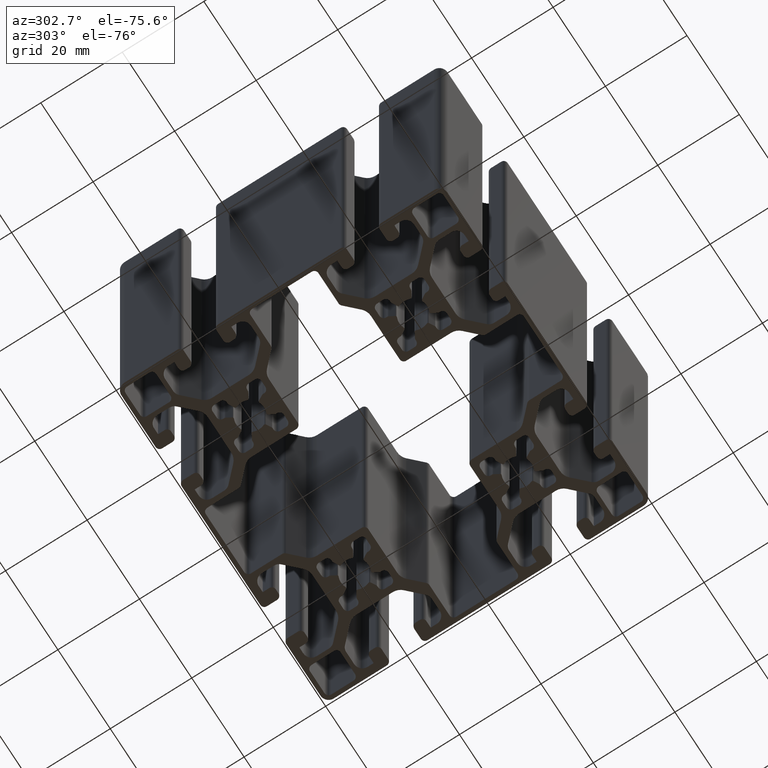
[diagram: clean part render]
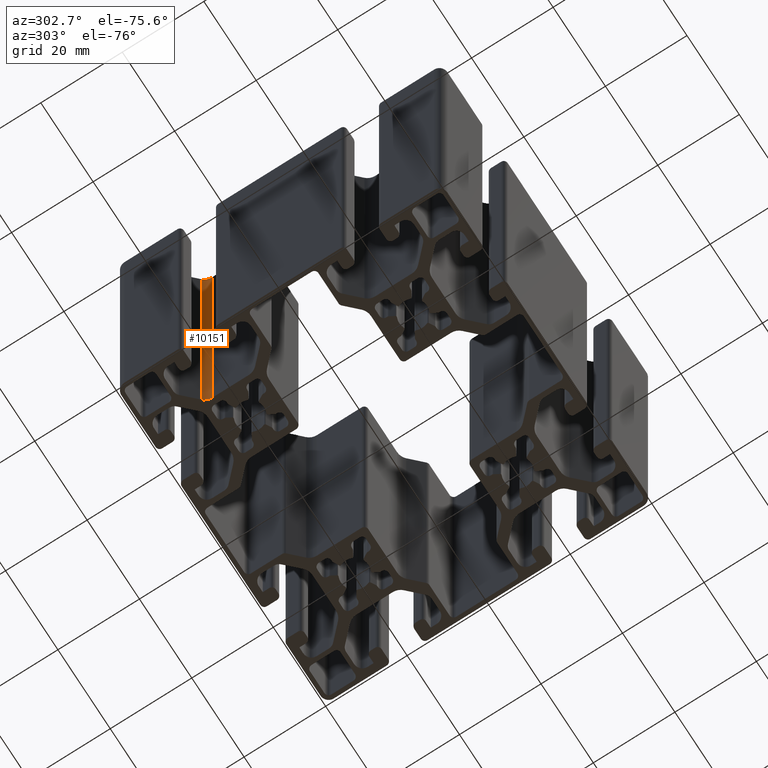
[diagram: same view with one face highlighted and labeled with its STEP entity id]
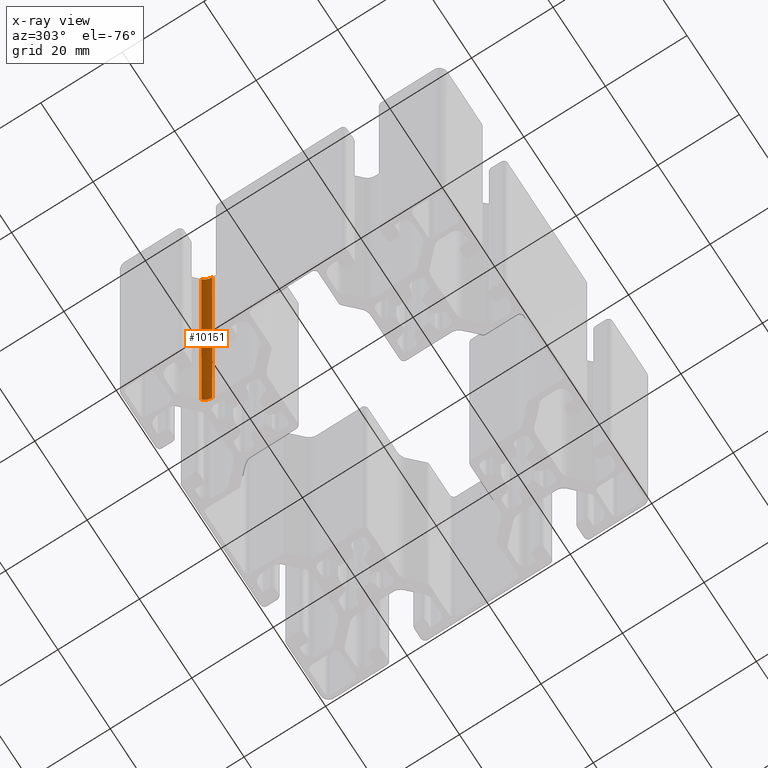
[diagram: x-ray of the same camera — body ghosted, the highlighted face saturated]
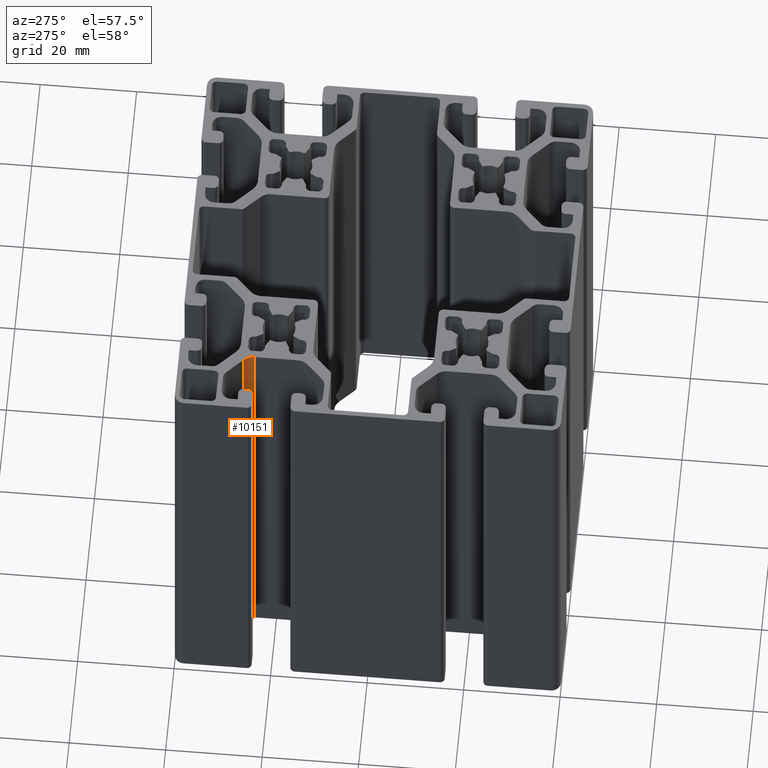
[diagram: same view with one face highlighted and labeled with its STEP entity id]
A machine part, auxiliary view. The second image highlights one B-rep face of the part: STEP entity #10151.
The next image is the same camera in x-ray: the body ghosted, the highlighted face saturated — about 0% of this face is hidden behind the body in this view.
A second angle (auxiliary view) of the same face is appended — the face is thin or edge-on in the first view.
In plain terms, the highlighted cylindrical surface (edge-blend (fillet) strip) has radius 3 mm, axis along (0, 0, 1).
Its self-contained STEP definition (entity closure, byte-faithful):
#109=CIRCLE('',#10760,3.00000000000001);
#110=CIRCLE('',#10761,3.00000000000001);
#615=CYLINDRICAL_SURFACE('',#10759,3.00000000000001);
#927=FACE_OUTER_BOUND('',#1457,.T.);
#1457=EDGE_LOOP('',(#6959,#6960,#6961,#6962));
#2086=LINE('',#15343,#3126);
#2087=LINE('',#15349,#3127);
#3126=VECTOR('',#12148,100.);
#3127=VECTOR('',#12155,100.);
#4165=VERTEX_POINT('',#15339);
#4166=VERTEX_POINT('',#15341);
#4167=VERTEX_POINT('',#15345);
#4168=VERTEX_POINT('',#15347);
#5298=EDGE_CURVE('',#4166,#4165,#2086,.T.);
#5299=EDGE_CURVE('',#4165,#4167,#109,.T.);
#5300=EDGE_CURVE('',#4168,#4166,#110,.T.);
#5301=EDGE_CURVE('',#4168,#4167,#2087,.T.);
#6959=ORIENTED_EDGE('',*,*,#5299,.F.);
#6960=ORIENTED_EDGE('',*,*,#5298,.F.);
#6961=ORIENTED_EDGE('',*,*,#5300,.F.);
#6962=ORIENTED_EDGE('',*,*,#5301,.T.);
#10151=ADVANCED_FACE('',(#927),#615,.F.);
#10759=AXIS2_PLACEMENT_3D('',#15344,#12149,#12150);
#10760=AXIS2_PLACEMENT_3D('',#15346,#12151,#12152);
#10761=AXIS2_PLACEMENT_3D('',#15348,#12153,#12154);
#12148=DIRECTION('',(0.,0.,1.));
#12149=DIRECTION('center_axis',(0.,0.,1.));
#12150=DIRECTION('ref_axis',(1.,-1.48029736616687E-15,0.));
#12151=DIRECTION('center_axis',(0.,0.,-1.));
#12152=DIRECTION('ref_axis',(1.,-1.48029736616687E-15,0.));
#12153=DIRECTION('center_axis',(0.,0.,1.));
#12154=DIRECTION('ref_axis',(1.,-1.48029736616687E-15,0.));
#12155=DIRECTION('',(0.,0.,1.));
#15339=CARTESIAN_POINT('',(-28.3786796564404,26.610912703474,100.));
#15341=CARTESIAN_POINT('',(-28.3786796564404,26.610912703474,0.));
#15343=CARTESIAN_POINT('',(-28.3786796564404,26.610912703474,0.));
#15344=CARTESIAN_POINT('Origin',(-30.5,24.4895923599144,0.));
#15345=CARTESIAN_POINT('',(-27.5,24.4895923599144,100.));
#15346=CARTESIAN_POINT('Origin',(-30.5,24.4895923599144,100.));
#15347=CARTESIAN_POINT('',(-27.5,24.4895923599144,0.));
#15348=CARTESIAN_POINT('Origin',(-30.5,24.4895923599144,0.));
#15349=CARTESIAN_POINT('',(-27.5,24.4895923599144,0.));